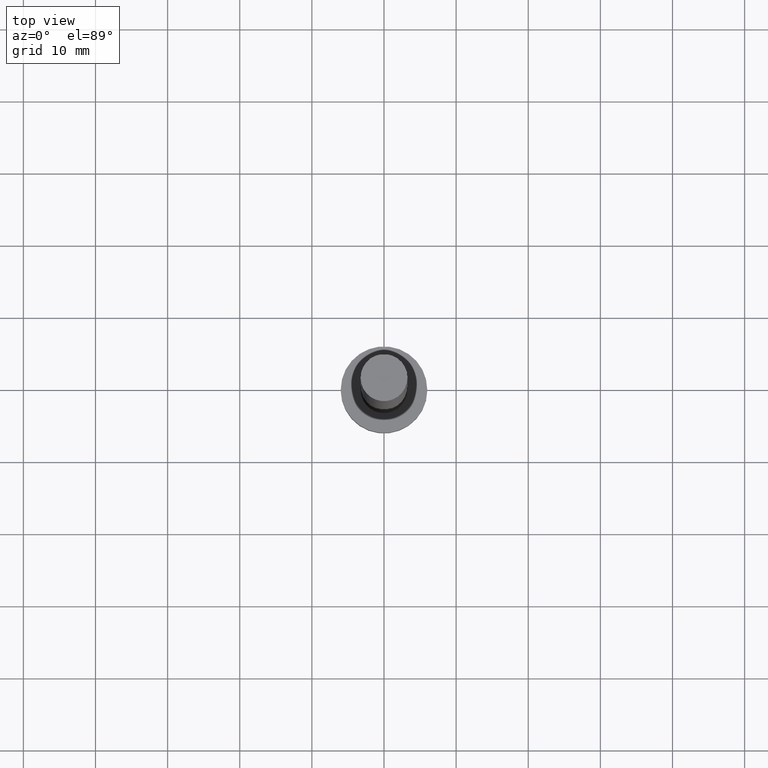
[diagram: clean part render]
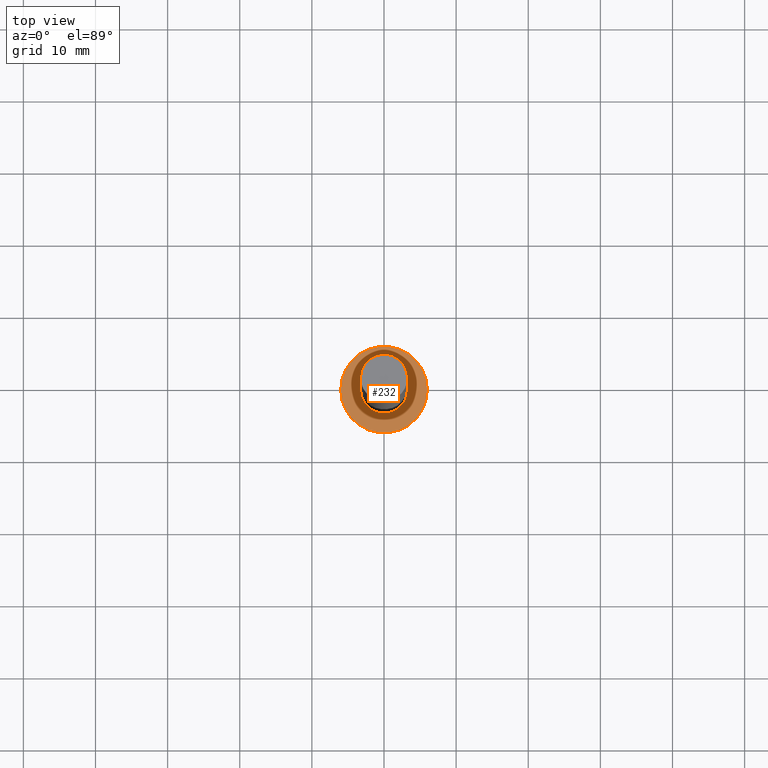
[diagram: same view with one face highlighted and labeled with its STEP entity id]
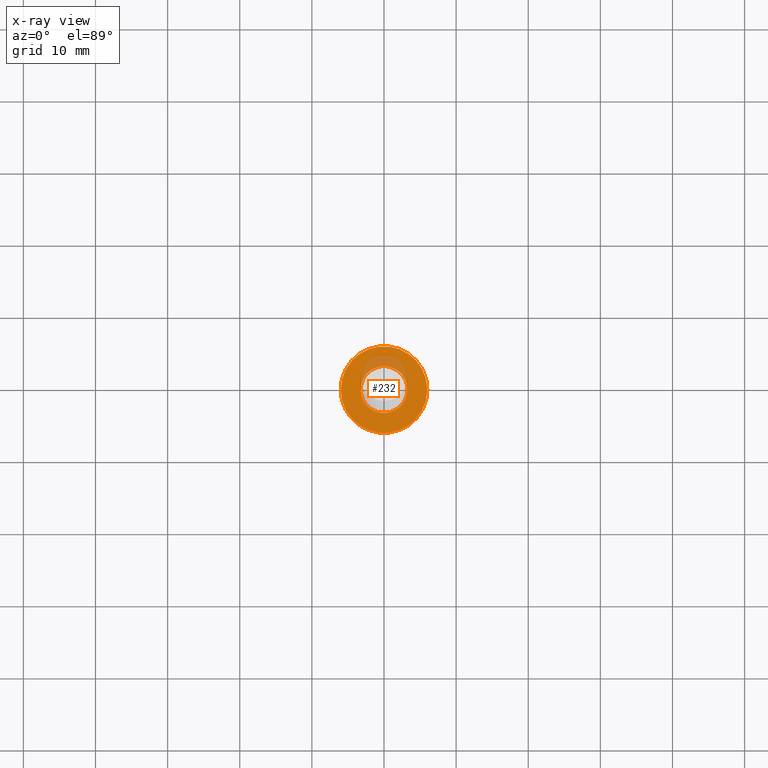
[diagram: x-ray of the same camera — body ghosted, the highlighted face saturated]
A machine part, top view. The second image highlights one B-rep face of the part: STEP entity #232.
The next image is the same camera in x-ray: the body ghosted, the highlighted face saturated — about 14% of this face is hidden behind the body in this view.
In plain terms, the highlighted planar face has unit normal (0, 0, 1).
Its self-contained STEP definition (entity closure, byte-faithful):
#1 = AXIS2_PLACEMENT_3D ( 'NONE', #159, #96, #218 ) ;
#9 = CIRCLE ( 'NONE', #192, 6.000000000000000888 ) ;
#11 = ORIENTED_EDGE ( 'NONE', *, *, #82, .T. ) ;
#14 = CARTESIAN_POINT ( 'NONE',  ( 0.000000000000000000, 0.000000000000000000, 5.000000000000000000 ) ) ;
#20 = FACE_BOUND ( 'NONE', #134, .T. ) ;
#31 = EDGE_LOOP ( 'NONE', ( #11, #211 ) ) ;
#35 = VERTEX_POINT ( 'NONE', #235 ) ;
#41 = CARTESIAN_POINT ( 'NONE',  ( 0.000000000000000000, 0.000000000000000000, 5.000000000000000000 ) ) ;
#48 = EDGE_CURVE ( 'NONE', #224, #200, #92, .T. ) ;
#49 = EDGE_CURVE ( 'NONE', #65, #35, #106, .T. ) ;
#55 = DIRECTION ( 'NONE',  ( 0.000000000000000000, 0.000000000000000000, 1.000000000000000000 ) ) ;
#60 = DIRECTION ( 'NONE',  ( 1.000000000000000000, 0.000000000000000000, -0.000000000000000000 ) ) ;
#65 = VERTEX_POINT ( 'NONE', #128 ) ;
#82 = EDGE_CURVE ( 'NONE', #200, #224, #9, .T. ) ;
#92 = CIRCLE ( 'NONE', #1, 6.000000000000000888 ) ;
#96 = DIRECTION ( 'NONE',  ( 0.000000000000000000, 0.000000000000000000, 1.000000000000000000 ) ) ;
#98 = FACE_OUTER_BOUND ( 'NONE', #31, .T. ) ;
#106 = CIRCLE ( 'NONE', #244, 3.250000000000000444 ) ;
#109 = CARTESIAN_POINT ( 'NONE',  ( 0.000000000000000000, 0.000000000000000000, 5.000000000000000000 ) ) ;
#111 = ORIENTED_EDGE ( 'NONE', *, *, #207, .F. ) ;
#112 = PLANE ( 'NONE',  #152 ) ;
#117 = CARTESIAN_POINT ( 'NONE',  ( 6.000000000000000888, 7.347880794884120722E-16, 5.000000000000000000 ) ) ;
#119 = AXIS2_PLACEMENT_3D ( 'NONE', #109, #131, #216 ) ;
#126 = DIRECTION ( 'NONE',  ( 0.000000000000000000, 0.000000000000000000, 1.000000000000000000 ) ) ;
#128 = CARTESIAN_POINT ( 'NONE',  ( 3.250000000000000444, 3.980102097228898231E-16, 5.000000000000000000 ) ) ;
#129 = CARTESIAN_POINT ( 'NONE',  ( -6.000000000000000888, 0.000000000000000000, 5.000000000000000000 ) ) ;
#131 = DIRECTION ( 'NONE',  ( 0.000000000000000000, 0.000000000000000000, 1.000000000000000000 ) ) ;
#134 = EDGE_LOOP ( 'NONE', ( #111, #166 ) ) ;
#149 = CARTESIAN_POINT ( 'NONE',  ( 0.000000000000000000, 0.000000000000000000, 5.000000000000000000 ) ) ;
#152 = AXIS2_PLACEMENT_3D ( 'NONE', #14, #249, #60 ) ;
#159 = CARTESIAN_POINT ( 'NONE',  ( 0.000000000000000000, 0.000000000000000000, 5.000000000000000000 ) ) ;
#166 = ORIENTED_EDGE ( 'NONE', *, *, #49, .F. ) ;
#185 = DIRECTION ( 'NONE',  ( 1.000000000000000000, 0.000000000000000000, 0.000000000000000000 ) ) ;
#192 = AXIS2_PLACEMENT_3D ( 'NONE', #41, #55, #253 ) ;
#200 = VERTEX_POINT ( 'NONE', #129 ) ;
#203 = CIRCLE ( 'NONE', #119, 3.250000000000000444 ) ;
#207 = EDGE_CURVE ( 'NONE', #35, #65, #203, .T. ) ;
#211 = ORIENTED_EDGE ( 'NONE', *, *, #48, .T. ) ;
#216 = DIRECTION ( 'NONE',  ( 1.000000000000000000, 0.000000000000000000, 0.000000000000000000 ) ) ;
#218 = DIRECTION ( 'NONE',  ( 1.000000000000000000, 0.000000000000000000, 0.000000000000000000 ) ) ;
#224 = VERTEX_POINT ( 'NONE', #117 ) ;
#232 = ADVANCED_FACE ( 'NONE', ( #20, #98 ), #112, .T. ) ;
#235 = CARTESIAN_POINT ( 'NONE',  ( -3.250000000000000444, 0.000000000000000000, 5.000000000000000000 ) ) ;
#244 = AXIS2_PLACEMENT_3D ( 'NONE', #149, #126, #185 ) ;
#249 = DIRECTION ( 'NONE',  ( 0.000000000000000000, 0.000000000000000000, 1.000000000000000000 ) ) ;
#253 = DIRECTION ( 'NONE',  ( 1.000000000000000000, 0.000000000000000000, 0.000000000000000000 ) ) ;